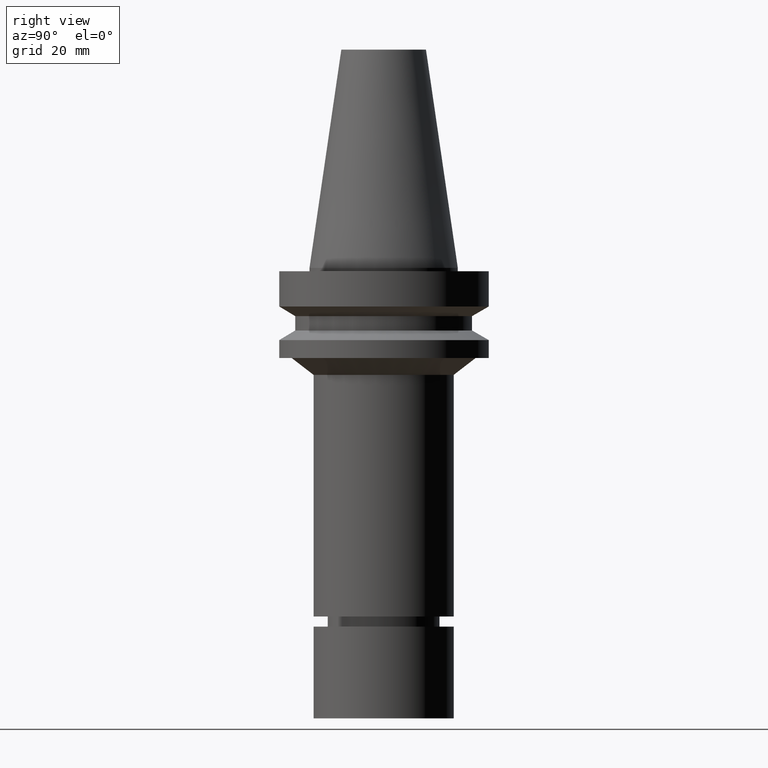
[diagram: clean part render]
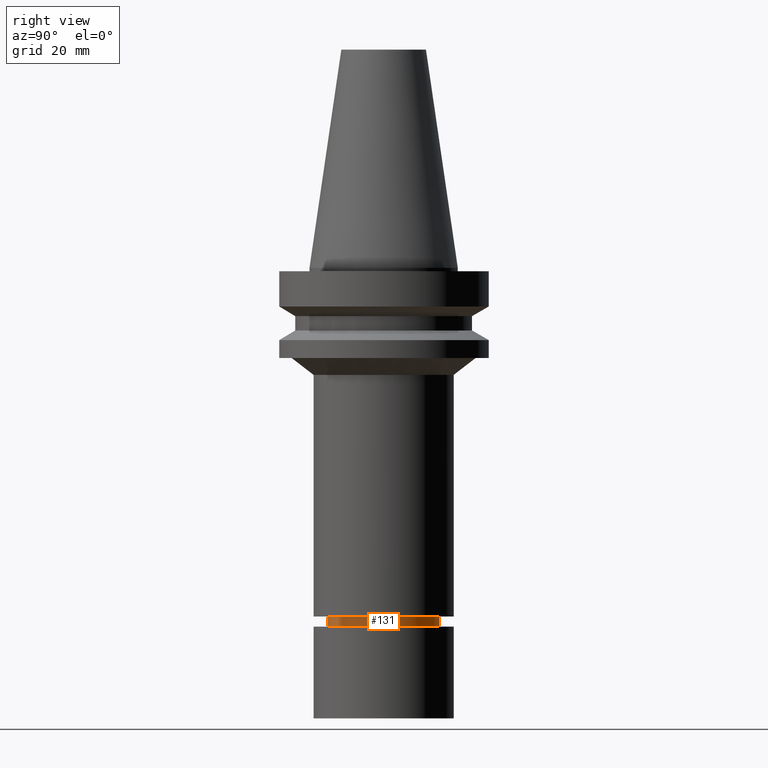
[diagram: same view with one face highlighted and labeled with its STEP entity id]
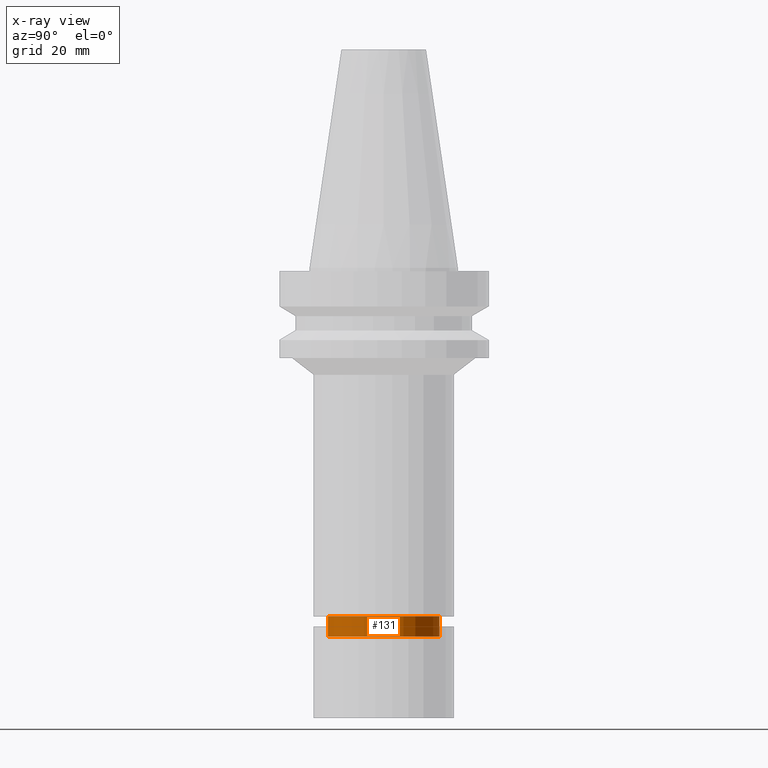
[diagram: x-ray of the same camera — body ghosted, the highlighted face saturated]
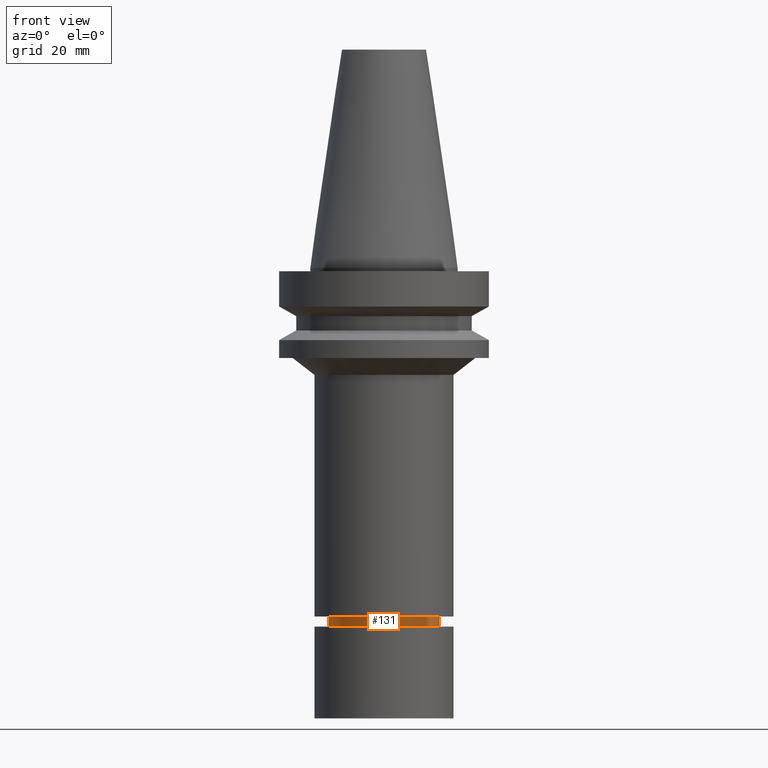
[diagram: same view with one face highlighted and labeled with its STEP entity id]
A machine part, right view. The second image highlights one B-rep face of the part: STEP entity #131.
The next image is the same camera in x-ray: the body ghosted, the highlighted face saturated — about 0% of this face is hidden behind the body in this view.
A second angle (front view) of the same face is appended — the face is thin or edge-on in the first view.
In plain terms, the highlighted cylindrical surface (bore or boss wall) has radius 16.75 mm, axis along (0, -0, -1).
Its self-contained STEP definition (entity closure, byte-faithful):
#86=EDGE_CURVE('Unnamed[1]',#219,#219,#220,.T.);
#131=ADVANCED_FACE('Unnamed[1]',(#288,#289),#290,.T.);
#178=EDGE_CURVE('Unnamed[1]',#359,#359,#360,.T.);
#219=VERTEX_POINT('',#399);
#220=CIRCLE('',#400,16.7499999999907);
#288=FACE_BOUND('',#485,.T.);
#289=FACE_BOUND('',#486,.T.);
#290=CYLINDRICAL_SURFACE('',#487,16.7499999999962);
#359=VERTEX_POINT('',#573);
#360=CIRCLE('',#574,16.7500000000016);
#399=CARTESIAN_POINT('',(6.39877952554487E-015,16.7499999999907,-104.499999999999));
#400=AXIS2_PLACEMENT_3D('',#601,#602,#603);
#485=EDGE_LOOP('',(#675));
#486=EDGE_LOOP('',(#676));
#487=AXIS2_PLACEMENT_3D('',#677,#678,#679);
#573=CARTESIAN_POINT('',(6.7641727903392E-015,16.7500000000017,-110.467324865401));
#574=AXIS2_PLACEMENT_3D('',#755,#756,#757);
#601=CARTESIAN_POINT('',(6.39877952554487E-015,6.11809795311638E-014,-104.499999999999));
#602=DIRECTION('',(6.12323399573677E-017,-9.35480732738538E-017,-1.0));
#603=DIRECTION('',(9.01014694290469E-034,1.0,-9.35480732738538E-017));
#675=ORIENTED_EDGE('',*,*,#178,.F.);
#676=ORIENTED_EDGE('',*,*,#86,.T.);
#677=CARTESIAN_POINT('',(6.58147615794204E-015,6.09018636592851E-014,-107.4836624327));
#678=DIRECTION('',(6.12323399573677E-017,-9.35480732738233E-017,-1.0));
#679=DIRECTION('',(9.01014694295529E-034,1.0,-9.35480732738233E-017));
#755=CARTESIAN_POINT('',(6.7641727903392E-015,6.06227477874064E-014,-110.467324865401));
#756=DIRECTION('',(6.12323399573676E-017,-9.35480732737927E-017,-1.0));
#757=DIRECTION('',(9.0101469428988E-034,1.0,-9.35480732737927E-017));